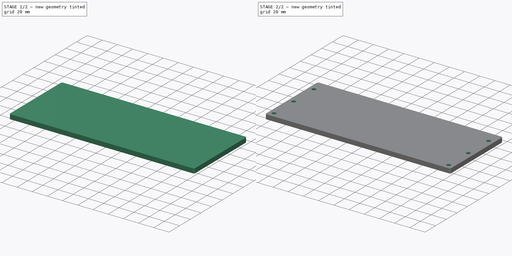
[diagram: build sequence overview — one tinted view per stage of 2, left to right]
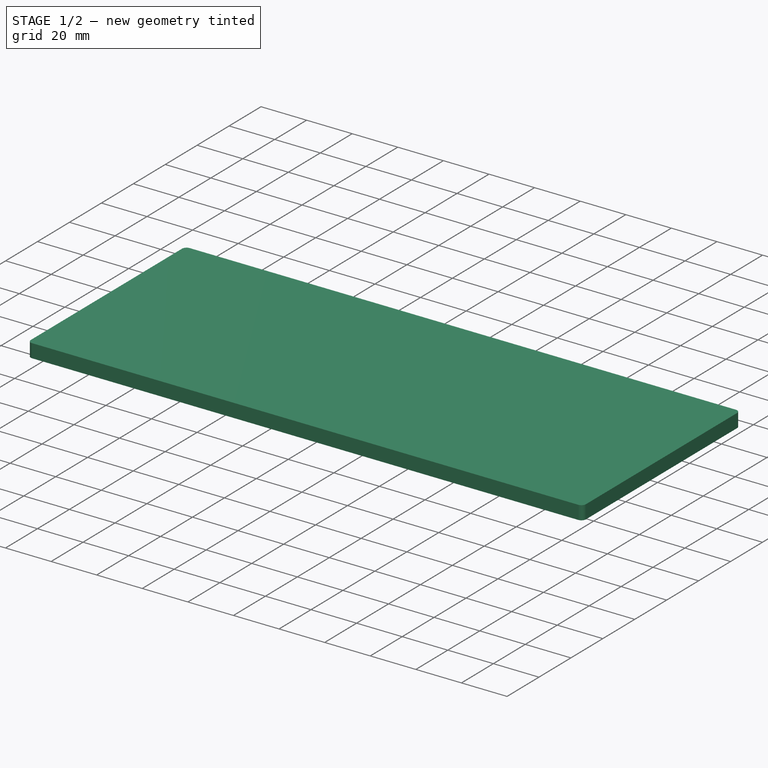
[diagram: stage 1 of 2 — iso view after this stage's code; geometry added in this stage tinted green]
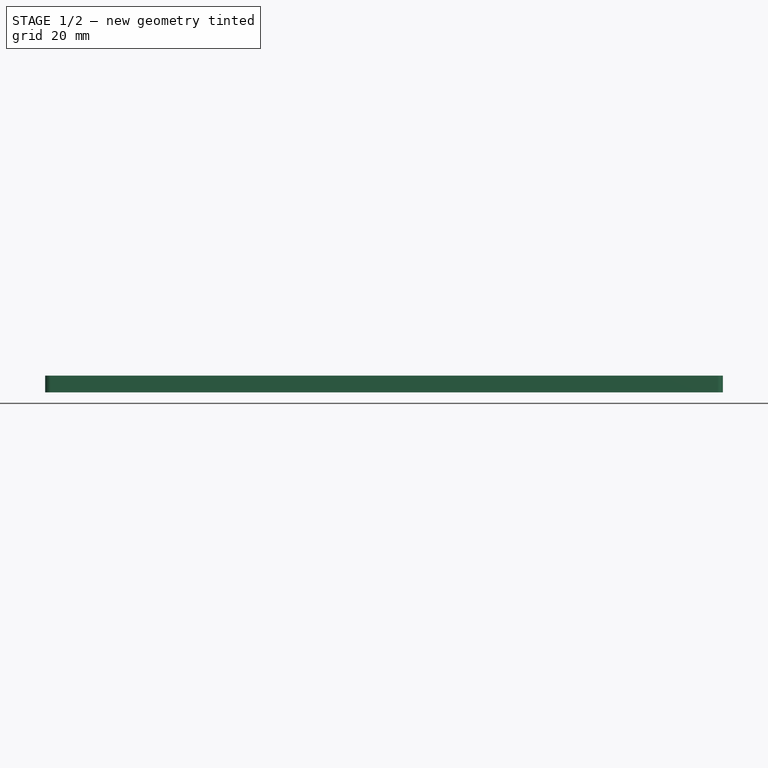
[diagram: stage 1 of 2 — front view after this stage's code; geometry added in this stage tinted green]
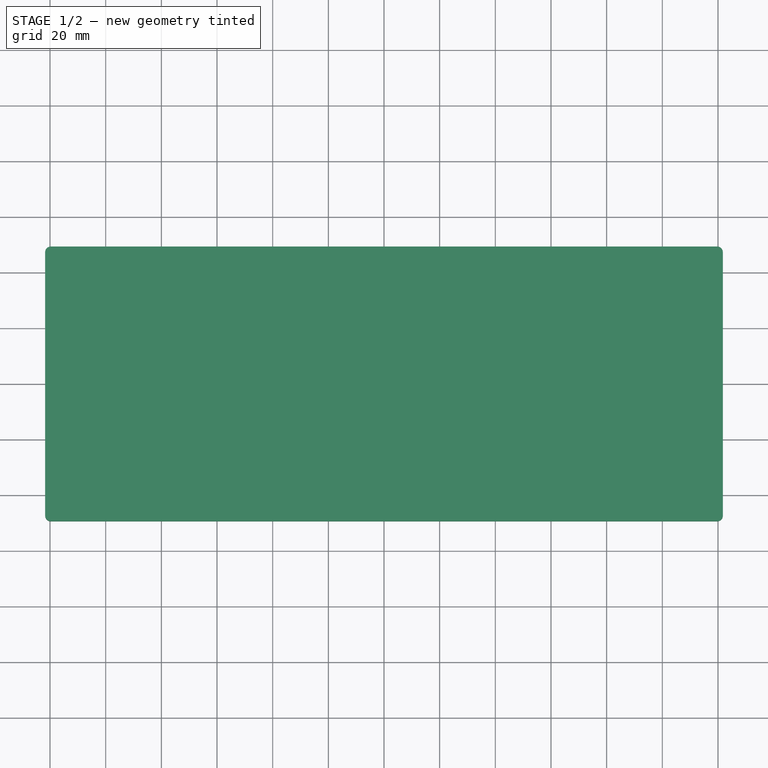
[diagram: stage 1 of 2 — top view after this stage's code; geometry added in this stage tinted green]
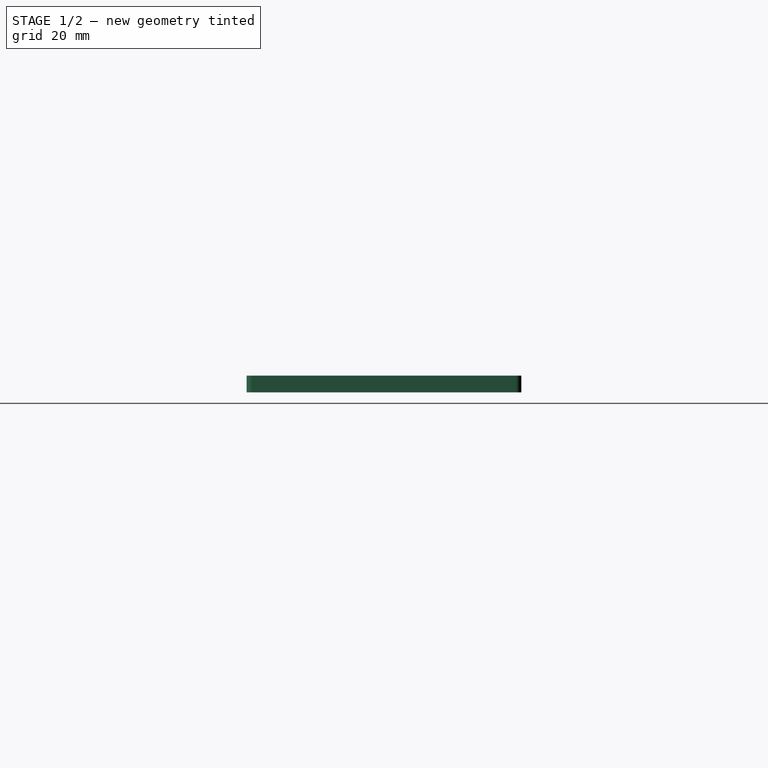
[diagram: stage 1 of 2 — right view after this stage's code; geometry added in this stage tinted green]
FCSTD DOCUMENT  (FreeCAD 0.18R4 (GitTag))
Label: Model2_Case2
License: All rights reserved
LicenseURL: http://en.wikipedia.org/wiki/All_rights_reserved
objects: Sketcher::SketchObject×4, PartDesign::Pad×1, Part::Thickness×1, PartDesign::Pocket×1, PartDesign::Hole×1, PartDesign::ShapeBinder×1, PartDesign::Body×1
note: 13 computed .brp shape members not serialized (recipe doc carries the construction recipe); baked Part::Feature solids carry a one-line shape summary decoded from their .brp

FEATURE [Sketcher::SketchObject] Sketch  label="pcb_sketch"
  MapMode = 5
  Support = -> [XY_Plane]
  expr: Constraints[25] = pcb_sketch001.Constraints.hole_gap
  expr: Constraints[24] = Constraints.middle_bottom
  expr: Constraints[23] = Constraints.hole_gap
  expr: Constraints[26] = Constraints.top_down
  expr: Constraints[27] = pcb_sketch001.Constraints.hole_gap
  expr: Constraints[14] = pcb_sketch001.Constraints.hole_gap
  expr: Constraints[13] = pcb_sketch001.Constraints.hole_gap
  expr: Constraints[12] = pcb_sketch001.Constraints.hole_gap
  expr: Constraints[11] = pcb_sketch001.Constraints.hole_gap
  sketch-geometry (10):
    g0: LineSegment [constr] StartX=-118.75 StartY=46.355 StartZ=0 EndX=118.75 EndY=46.355 EndZ=0
    g1: LineSegment [constr] StartX=118.75 StartY=46.355 StartZ=0 EndX=118.75 EndY=-46.355 EndZ=0
    g2: LineSegment [constr] StartX=118.75 StartY=-46.355 StartZ=0 EndX=-118.75 EndY=-46.355 EndZ=0
    g3: LineSegment StartX=-118.75 StartY=-46.355 StartZ=0 EndX=-118.75 EndY=46.355 EndZ=0
    g4: Circle CenterX=114.94 CenterY=32.385 CenterZ=0 NormalX=0 NormalY=0 NormalZ=1 AngleXU=0 Radius=2.5
    g5: Circle CenterX=114.94 CenterY=-5.715 CenterZ=0 NormalX=0 NormalY=0 NormalZ=1 AngleXU=0 Radius=2.5
    g6: Circle CenterX=114.94 CenterY=-42.545 CenterZ=0 NormalX=0 NormalY=0 NormalZ=1 AngleXU=0 Radius=2.5
    g7: Circle CenterX=-114.94 CenterY=-42.545 CenterZ=0 NormalX=0 NormalY=0 NormalZ=1 AngleXU=0 Radius=2.5
    g8: Circle CenterX=-114.94 CenterY=-5.715 CenterZ=0 NormalX=0 NormalY=0 NormalZ=1 AngleXU=0 Radius=2.5
    g9: Circle CenterX=-114.94 CenterY=32.385 CenterZ=0 NormalX=0 NormalY=0 NormalZ=1 AngleXU=0 Radius=2.5
  constraints (28):
    c: Coincident(g0,g1)
    c: Coincident(g1,g2)
    c: Coincident(g2,g3)
    c: Coincident(g3,g0)
    c: Horizontal(g2)
    c: Vertical(g1)
    c: DistanceX(g0,g0) = 237.5  'width'
    c: DistanceY(g1,g1) = 92.71  'height'
    c: Symmetric(g0,g0,g-2)
    c: Symmetric(g2,g0,g-1)
    c: Distance(g7,g3) = 3.81  'hole_gap'
    c: Distance(g8,g3) = 3.81
    c: Distance(g9,g3) = 3.81
    c: Distance(g5,g1) = 3.81
    c: Distance(g6,g1) = 3.81
    c: Radius(g7) = 2.5
    c: Equal(g7,g8)  'm3_radius'
    c: Equal(g7,g9)
    c: Equal(g7,g4)
    c: Equal(g7,g5)
    c: Equal(g7,g6)
    c: DistanceY(g7,g8) = 36.83  'middle_bottom'
    c: DistanceY(g8,g9) = 38.1  'top_down'
    c: Distance(g6,g2) = 3.81
    c: DistanceY(g6,g5) = 36.83
    c: Distance(g4,g1) = 3.81
    c: DistanceY(g5,g4) = 38.1
    c: Distance(g7,g2) = 3.81
FEATURE [Sketcher::SketchObject] Sketch001  label="case_sketch"
  MapMode = 5
  Support = -> [XY_Plane]
  expr: Constraints.case_width = pcb_sketch001.Constraints.width + 2mm
  expr: Constraints.case_height = pcb_sketch001.Constraints.height + 2mm
  sketch-geometry (8):
    g0: LineSegment StartX=-119.75 StartY=49.355 StartZ=0 EndX=119.75 EndY=49.355 EndZ=0
    g1: LineSegment StartX=121.75 StartY=47.355 StartZ=0 EndX=121.75 EndY=-47.355 EndZ=0
    g2: LineSegment StartX=119.75 StartY=-49.355 StartZ=0 EndX=-119.75 EndY=-49.355 EndZ=0
    g3: LineSegment StartX=-121.75 StartY=-47.355 StartZ=0 EndX=-121.75 EndY=47.355 EndZ=0
    g4: ArcOfCircle CenterX=119.75 CenterY=47.355 CenterZ=0 NormalX=0 NormalY=0 NormalZ=1 AngleXU=0 Radius=2 StartAngle=-9e-16 EndAngle=1.5708
    g5: ArcOfCircle CenterX=119.75 CenterY=-47.355 CenterZ=0 NormalX=0 NormalY=0 NormalZ=1 AngleXU=0 Radius=2 StartAngle=4.71239 EndAngle=6.28319
    g6: ArcOfCircle CenterX=-119.75 CenterY=-47.355 CenterZ=0 NormalX=0 NormalY=0 NormalZ=1 AngleXU=0 Radius=2 StartAngle=3.14159 EndAngle=4.71239
    g7: ArcOfCircle CenterX=-119.75 CenterY=47.355 CenterZ=0 NormalX=0 NormalY=0 NormalZ=1 AngleXU=0 Radius=2 StartAngle=1.5708 EndAngle=3.14159
  constraints (18):
    c: Vertical(g1)
    c: Tangent(g1,g4) = 1.5708
    c: Tangent(g0,g4) = 1.5708
    c: Tangent(g1,g5) = 1.5708
    c: Tangent(g2,g5) = 1.5708
    c: Tangent(g2,g6) = 1.5708
    c: Tangent(g3,g6) = 1.5708
    c: Tangent(g3,g7) = 1.5708
    c: Tangent(g0,g7) = 1.5708
    c: Radius(g5) = 2
    c: Equal(g5,g4)
    c: Equal(g5,g7)
    c: Equal(g5,g6)
    c: Symmetric(g3,g3,g-1)
    c: Symmetric(g0,g0,g-2)
    c: DistanceY(g3,g3) = 94.71  'case_height'
    c: DistanceX(g0,g0) = 239.5  'case_width'
    c: Parallel(g2,g0)
FEATURE [PartDesign::Pad] Pad
  Length = 4
  Length2 = 2
  Profile = -> Sketch001
  Type = 4
FEATURE [Part::Thickness] Thickness001
  Intersection = false
  Join = 0
  Mode = 0
  SelfIntersection = false
  Value = 1
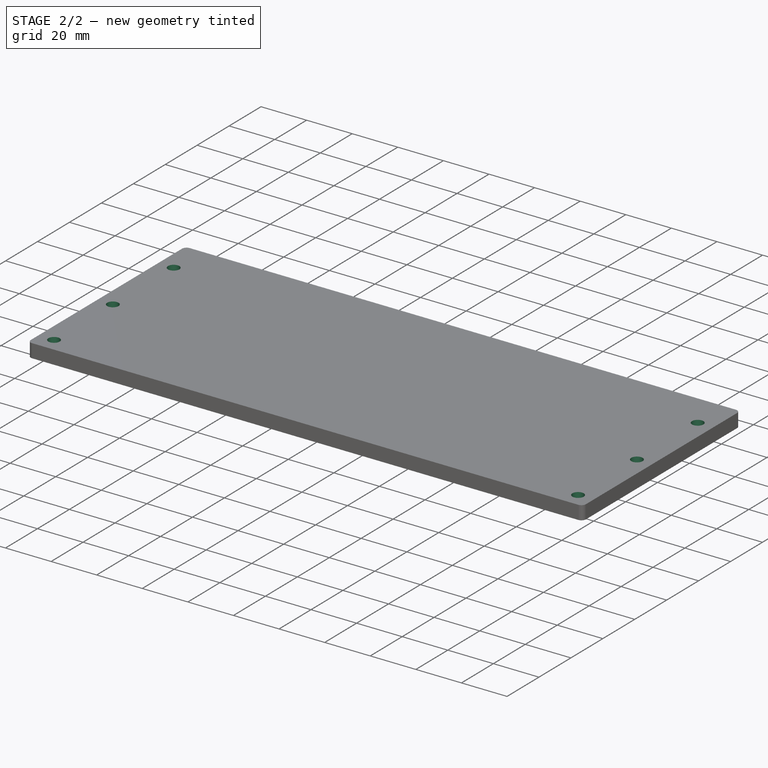
[diagram: stage 2 of 2 — iso view after this stage's code; geometry added in this stage tinted green]
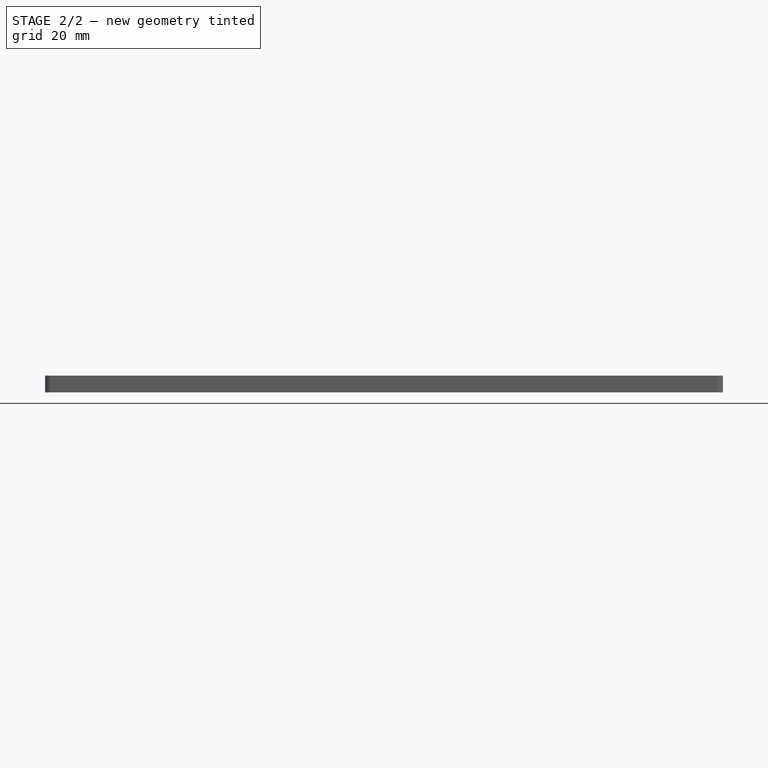
[diagram: stage 2 of 2 — front view after this stage's code; geometry added in this stage tinted green]
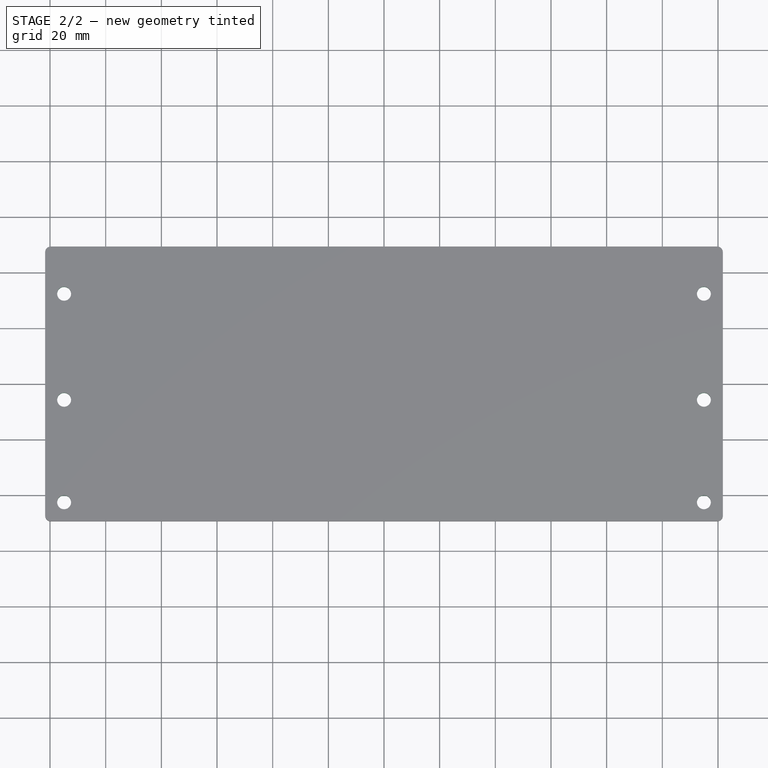
[diagram: stage 2 of 2 — top view after this stage's code; geometry added in this stage tinted green]
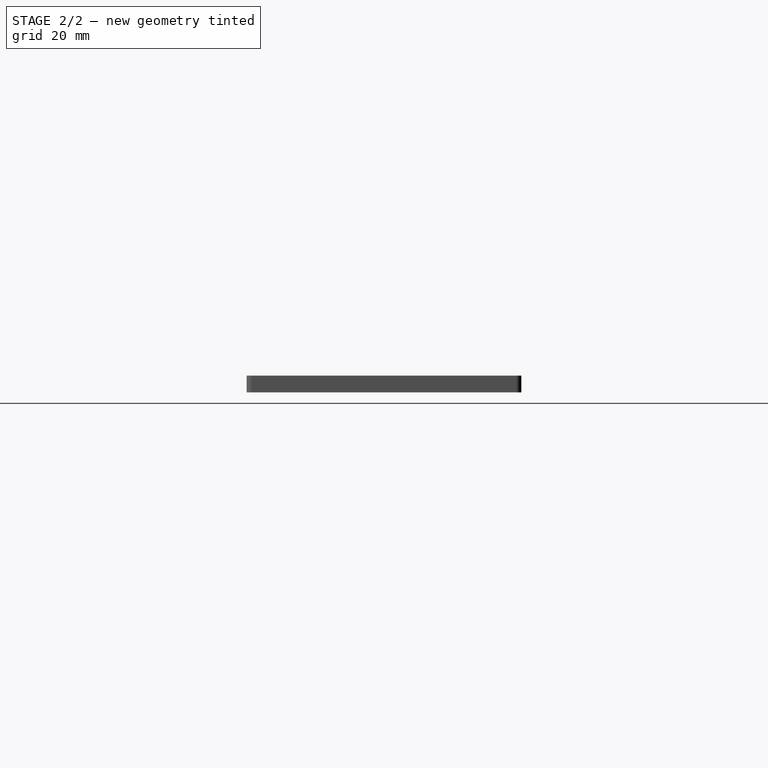
[diagram: stage 2 of 2 — right view after this stage's code; geometry added in this stage tinted green]
FEATURE [Sketcher::SketchObject] Sketch002  label="pcb_sketch001"
  MapMode = 5
  Placement = pos=(0,0,-2) rot=(0,0,1;0rad)
  Support = -> [Thickness001]
  sketch-geometry (10):
    g0: LineSegment [constr] StartX=-118.75 StartY=46.355 StartZ=0 EndX=118.75 EndY=46.355 EndZ=0
    g1: LineSegment [constr] StartX=118.75 StartY=46.355 StartZ=0 EndX=118.75 EndY=-46.355 EndZ=0
    g2: LineSegment [constr] StartX=118.75 StartY=-46.355 StartZ=0 EndX=-118.75 EndY=-46.355 EndZ=0
    g3: LineSegment StartX=-118.75 StartY=-46.355 StartZ=0 EndX=-118.75 EndY=46.355 EndZ=0
    g4: Circle CenterX=114.94 CenterY=32.385 CenterZ=0 NormalX=0 NormalY=0 NormalZ=1 AngleXU=0 Radius=2.5
    g5: Circle CenterX=114.94 CenterY=-5.715 CenterZ=0 NormalX=0 NormalY=0 NormalZ=1 AngleXU=0 Radius=2.5
    g6: Circle CenterX=114.94 CenterY=-42.545 CenterZ=0 NormalX=0 NormalY=0 NormalZ=1 AngleXU=0 Radius=2.5
    g7: Circle CenterX=-114.94 CenterY=-42.545 CenterZ=0 NormalX=0 NormalY=0 NormalZ=1 AngleXU=0 Radius=2.5
    g8: Circle CenterX=-114.94 CenterY=-5.715 CenterZ=0 NormalX=0 NormalY=0 NormalZ=1 AngleXU=0 Radius=2.5
    g9: Circle CenterX=-114.94 CenterY=32.385 CenterZ=0 NormalX=0 NormalY=0 NormalZ=1 AngleXU=0 Radius=2.5
  constraints (28):
    c: Coincident(g0,g1)
    c: Coincident(g1,g2)
    c: Coincident(g2,g3)
    c: Coincident(g3,g0)
    c: Horizontal(g2)
    c: Vertical(g1)
    c: DistanceX(g0,g0) = 237.5  'width'
    c: DistanceY(g1,g1) = 92.71  'height'
    c: Symmetric(g0,g0,g-2)
    c: Symmetric(g2,g0,g-1)
    c: Distance(g7,g3) = 3.81  'hole_gap'
    c: Distance(g8,g3) = 3.81
    c: Distance(g9,g3) = 3.81
    c: Distance(g5,g1) = 3.81
    c: Distance(g6,g1) = 3.81
    c: Radius(g7) = 2.5
    c: Equal(g7,g8)  'm3_radius'
    c: Equal(g7,g9)
    c: Equal(g7,g4)
    c: Equal(g7,g5)
    c: Equal(g7,g6)
    c: DistanceY(g7,g8) = 36.83  'middle_bottom'
    c: DistanceY(g8,g9) = 38.1  'top_down'
    c: Distance(g6,g2) = 3.81
    c: DistanceY(g6,g5) = 36.83
    c: Distance(g4,g1) = 3.81
    c: DistanceY(g5,g4) = 38.1
    c: Distance(g7,g2) = 3.81
FEATURE [PartDesign::Pocket] Pocket  label="Unnamed"
  BaseFeature = -> Pad
  Length = 5
  Length2 = 100
  Profile = -> Sketch002
  Type = 4
FEATURE [Sketcher::SketchObject] Sketch003  label="Unnamed"
  ExternalGeometry = -> [Thickness001]
  MapMode = 5
  Placement = pos=(0,0,5) rot=(0,0,1;0rad)
  Support = -> [Thickness001]
  sketch-geometry (4):
    g0: LineSegment StartX=96.3403 StartY=52.4045 StartZ=0 EndX=116.34 EndY=52.4045 EndZ=0
    g1: LineSegment StartX=116.34 StartY=52.4045 StartZ=0 EndX=116.34 EndY=47.4045 EndZ=0
    g2: LineSegment StartX=116.34 StartY=47.4045 StartZ=0 EndX=96.3403 EndY=47.4045 EndZ=0
    g3: LineSegment StartX=96.3403 StartY=47.4045 StartZ=0 EndX=96.3403 EndY=52.4045 EndZ=0
  constraints (11):
    c: Coincident(g0,g1)
    c: Coincident(g1,g2)
    c: Coincident(g2,g3)
    c: Coincident(g3,g0)
    c: Horizontal(g0)
    c: Horizontal(g2)
    c: Vertical(g1)
    c: Vertical(g3)
    c: DistanceY(g3,g3) = 5
    c: DistanceX(g0,g0) = 20
    c: Distance(g-3,g1) = 3.81
FEATURE [PartDesign::Hole] Hole  label="Unnamed"
  BaseFeature = -> Pocket
  Depth = 25
  DepthType = 0
  Diameter = 6
  DrillPoint = 1
  DrillPointAngle = 118
  HoleCutCountersinkAngle = 90
  HoleCutDepth = 0
  HoleCutDiameter = 0
  HoleCutType = 0
  ModelActualThread = false
  Profile = -> Sketch003
  Tapered = false
  TaperedAngle = 90
  ThreadAngle = 0
  ThreadClass = 0
  ThreadCutOffInner = 0
  ThreadCutOffOuter = 0
  ThreadDirection = 0
  ThreadFit = 0
  ThreadPitch = 0
  ThreadSize = 0
  ThreadType = 0
  Threaded = false
FEATURE [PartDesign::ShapeBinder] ReferenceThickness001  label="Unnamed"
  Support = -> [Thickness001]
  TraceSupport = false
FEATURE [PartDesign::Body] Body
  Group = -> [Sketch,Sketch001,Pad,Sketch002,Pocket,Hole,ReferenceThickness001]
  Origin = -> Origin
  Tip = -> Hole
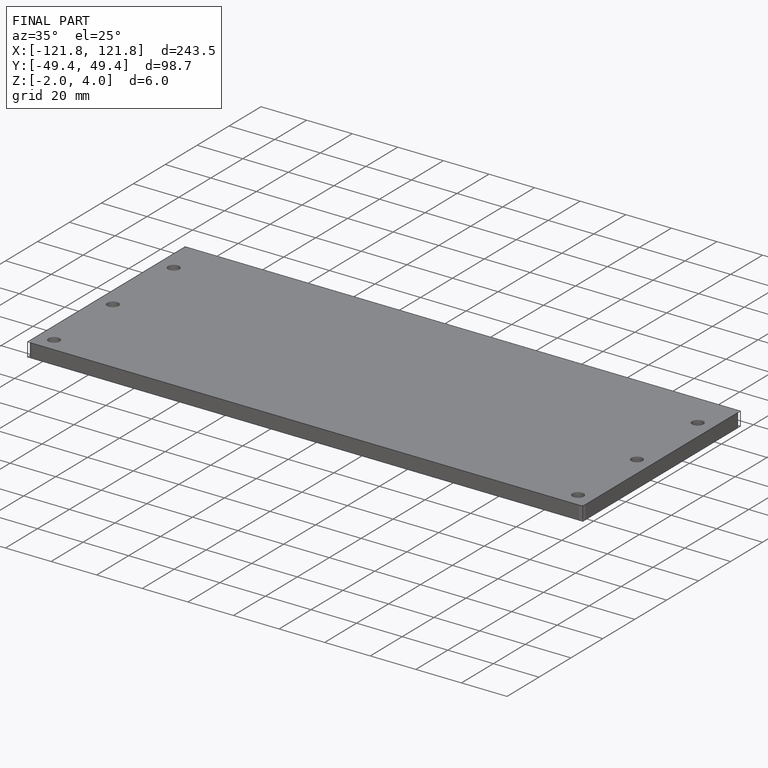
[diagram: finished part — iso view with bounding-box wireframe]
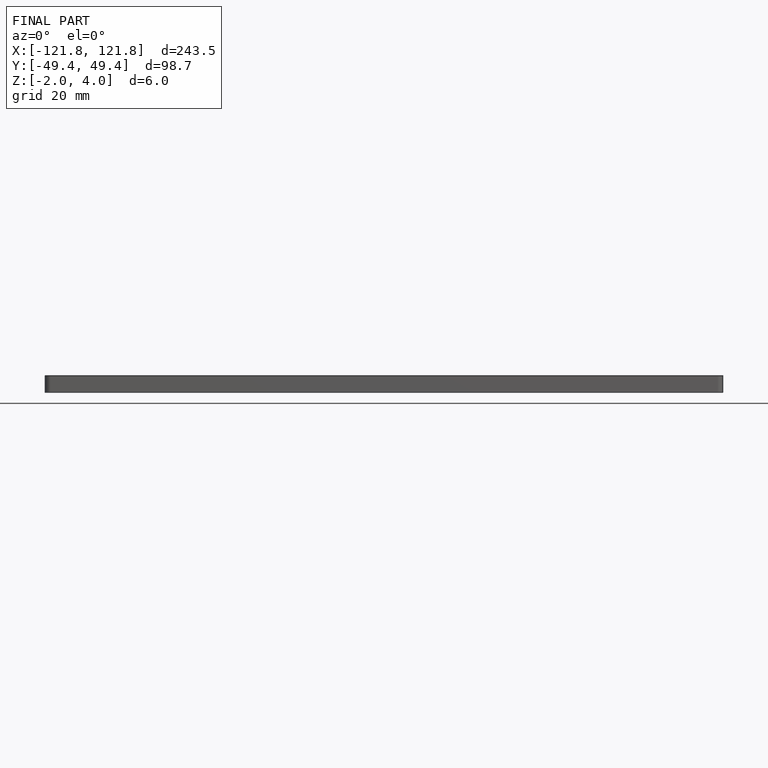
[diagram: finished part — front view with bounding-box wireframe]
